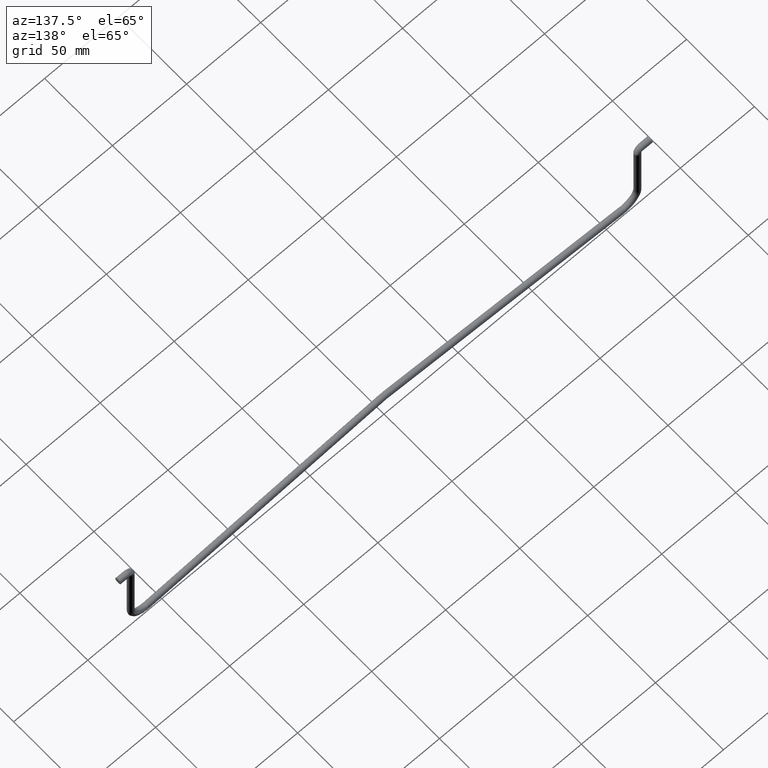
[diagram: clean part render]
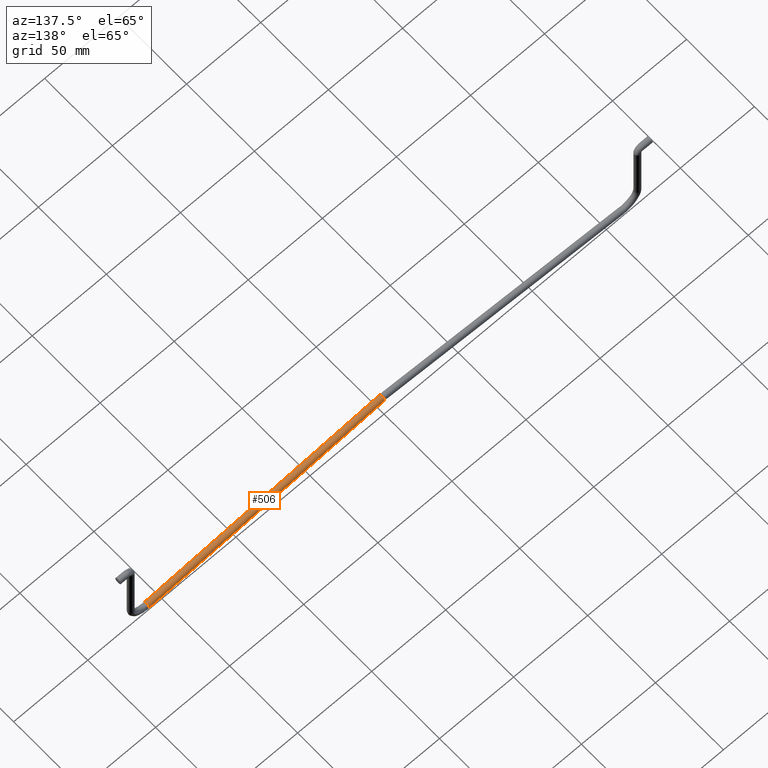
[diagram: same view with one face highlighted and labeled with its STEP entity id]
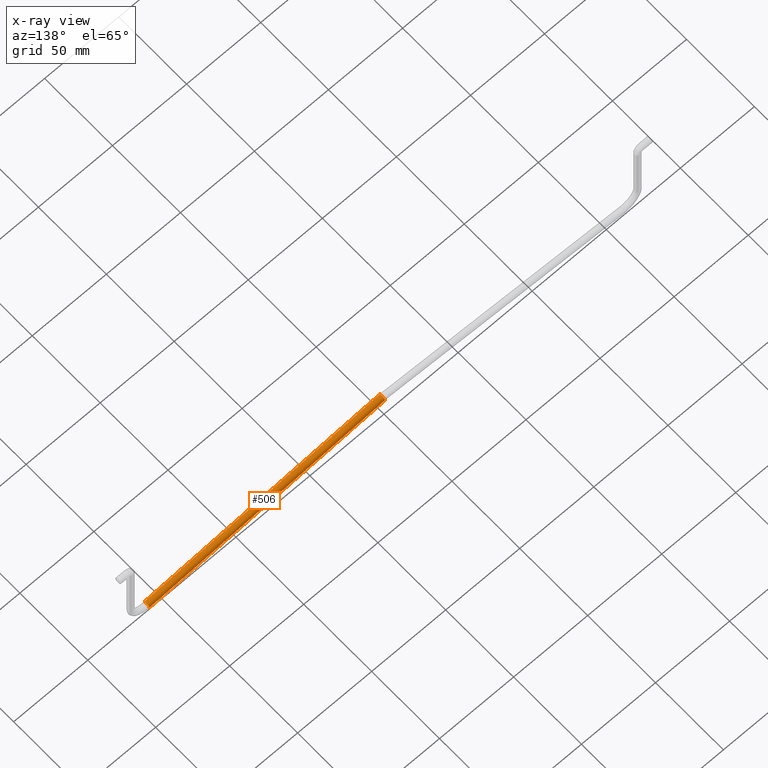
[diagram: x-ray of the same camera — body ghosted, the highlighted face saturated]
A machine part, auxiliary view. The second image highlights one B-rep face of the part: STEP entity #506.
The next image is the same camera in x-ray: the body ghosted, the highlighted face saturated — about 0% of this face is hidden behind the body in this view.
In plain terms, the highlighted face is a freeform B-spline surface patch.
Its self-contained STEP definition (entity closure, byte-faithful):
#408=CARTESIAN_POINT('',(-2.862925572434599,1.537013838790834,-44.972615344854127));
#409=CARTESIAN_POINT('',(-2.728835329992821,2.816696791465231,-43.441461744617889));
#410=CARTESIAN_POINT('',(-2.617194827453356,1.279682952674399,-42.166657893996863));
#411=CARTESIAN_POINT('',(-2.505554324913891,-0.257330886116434,-40.891854043375822));
#412=CARTESIAN_POINT('',(-2.639644567355670,-1.537013838790832,-42.423007643612081));
#413=CARTESIAN_POINT('',(164.087924521278500,1.537013838790831,-59.593277805806991));
#414=CARTESIAN_POINT('',(164.222014763720350,2.816696791465228,-58.062124205570747));
#415=CARTESIAN_POINT('',(164.333655266259800,1.279682952674396,-56.787320354949713));
#416=CARTESIAN_POINT('',(164.445295768799210,-0.257330886116437,-55.512516504328687));
#417=CARTESIAN_POINT('',(164.311205526357500,-1.537013838790835,-57.043670104564939));
#425=(BOUNDED_SURFACE()B_SPLINE_SURFACE(2,1,((#408,#413),(#409,#414),(#410,#415),(#411,#416),(#412,#417)),.UNSPECIFIED.,.F.,.F.,.U.)B_SPLINE_SURFACE_WITH_KNOTS((3,2,3),(2,2),(0.0,3.313708498984763,6.627416997969525),(0.0,167.589827011697200),.UNSPECIFIED.)GEOMETRIC_REPRESENTATION_ITEM()RATIONAL_B_SPLINE_SURFACE(((1.0,1.0),(0.707106781186548,0.707106781186548),(1.0,1.0),(0.707106781186548,0.707106781186548),(1.0,1.0)))REPRESENTATION_ITEM('')SURFACE());
#426=CARTESIAN_POINT('',(1.222457637251951,1.999961179884054,-44.033301835147732));
#427=VERTEX_POINT('',#426);
#428=CARTESIAN_POINT('',(1.109730056046620,1.537014305096715,-45.320518713547393));
#429=VERTEX_POINT('',#428);
#430=CARTESIAN_POINT('',(1.222457637251951,1.999961179884054,-44.033301835147732));
#431=CARTESIAN_POINT('',(1.199536829765304,2.001897181373108,-44.295030604597287));
#432=CARTESIAN_POINT('',(1.158767237616676,1.911055054075880,-44.760571577397272));
#433=CARTESIAN_POINT('',(1.123424542060288,1.667822052604127,-45.164143736894047));
#434=CARTESIAN_POINT('',(1.109730056046620,1.537014305096715,-45.320518713547393));
#435=B_SPLINE_CURVE_WITH_KNOTS('',3,(#430,#431,#432,#433,#434),.UNSPECIFIED.,.F.,.U.,(4,1,4),(0.000000192372256,0.788131132404644,1.401156208245944),.UNSPECIFIED.);
#436=EDGE_CURVE('',#427,#429,#435,.T.);
#437=ORIENTED_EDGE('',*,*,#436,.F.);
#438=CARTESIAN_POINT('',(1.395852024824098,7.645428E-016,-42.053340907661678));
#439=VERTEX_POINT('',#438);
#440=CARTESIAN_POINT('',(1.395852024824098,7.645428E-016,-42.053340907661678));
#441=CARTESIAN_POINT('',(1.395875130297601,0.260796208973278,-42.053077090657609));
#442=CARTESIAN_POINT('',(1.387388616991591,0.749512015261352,-42.149983168770760));
#443=CARTESIAN_POINT('',(1.352022843823558,1.393299824293846,-42.553818917021637));
#444=CARTESIAN_POINT('',(1.296294498577362,1.870515150545783,-43.190171370157238));
#445=CARTESIAN_POINT('',(1.248057855145439,1.998586520486926,-43.740977337908248));
#446=CARTESIAN_POINT('',(1.222457637251951,1.999961179884054,-44.033301835147732));
#447=B_SPLINE_CURVE_WITH_KNOTS('',3,(#440,#441,#442,#443,#444,#445,#446),.UNSPECIFIED.,.F.,.U.,(4,1,1,1,4),(0.000000601220168,0.782361164849886,1.466946497977828,2.249269395893304,3.129442855738981),.UNSPECIFIED.);
#448=EDGE_CURVE('',#439,#427,#447,.T.);
#449=ORIENTED_EDGE('',*,*,#448,.F.);
#450=CARTESIAN_POINT('',(1.333011082138430,-1.537013285860221,-42.770910909709407));
#451=VERTEX_POINT('',#450);
#452=CARTESIAN_POINT('',(1.333011082138430,-1.537013285860221,-42.770910909709407));
#453=CARTESIAN_POINT('',(1.353860326570726,-1.338781302187192,-42.532836945577458));
#454=CARTESIAN_POINT('',(1.385210316990107,-0.858012560340205,-42.174856754703789));
#455=CARTESIAN_POINT('',(1.395876493602592,-0.273972565772029,-42.053061503345852));
#456=CARTESIAN_POINT('',(1.395852024824098,7.645428E-016,-42.053340907661678));
#457=B_SPLINE_CURVE_WITH_KNOTS('',3,(#452,#453,#454,#455,#456),.UNSPECIFIED.,.F.,.U.,(4,1,4),(0.000000305310172,0.931243160794454,1.753062627253053),.UNSPECIFIED.);
#458=EDGE_CURVE('',#451,#439,#457,.T.);
#459=ORIENTED_EDGE('',*,*,#458,.F.);
#460=CARTESIAN_POINT('',(160.239233077835510,-1.537013299147724,-56.687067887136273));
#461=VERTEX_POINT('',#460);
#462=CARTESIAN_POINT('',(1.333011082138430,-1.537013285860221,-42.770910909709407));
#463=CARTESIAN_POINT('',(160.239233077835510,-1.537013299147724,-56.687067887136273));
#464=QUASI_UNIFORM_CURVE('',1,(#462,#463),.UNSPECIFIED.,.F.,.U.);
#465=EDGE_CURVE('',#451,#461,#464,.T.);
#466=ORIENTED_EDGE('',*,*,#465,.T.);
#467=CARTESIAN_POINT('',(160.302073987583810,-3.243411E-015,-55.969497866183538));
#468=VERTEX_POINT('',#467);
#469=CARTESIAN_POINT('',(160.239233077835510,-1.537013299147724,-56.687067887136273));
#470=CARTESIAN_POINT('',(160.257617176376410,-1.361929855105067,-56.477142427144607));
#471=CARTESIAN_POINT('',(160.289949505289090,-0.894276561390150,-56.107944335433842));
#472=CARTESIAN_POINT('',(160.302123705528090,-0.310499670640224,-55.968929622854688));
#473=CARTESIAN_POINT('',(160.302073987583810,-3.243411E-015,-55.969497866183538));
#474=B_SPLINE_CURVE_WITH_KNOTS('',3,(#469,#470,#471,#472,#473),.UNSPECIFIED.,.F.,.U.,(4,1,4),(0.000000305310466,0.821819781506541,1.753062648021827),.UNSPECIFIED.);
#475=EDGE_CURVE('',#461,#468,#474,.T.);
#476=ORIENTED_EDGE('',*,*,#475,.T.);
#477=CARTESIAN_POINT('',(160.145103757685890,1.989902031232371,-57.761914231302747));
#478=VERTEX_POINT('',#477);
#479=CARTESIAN_POINT('',(160.302073987583810,-3.243411E-015,-55.969497866183538));
#480=CARTESIAN_POINT('',(160.302082540538610,0.214409825140453,-55.969400201444962));
#481=CARTESIAN_POINT('',(160.295571718247600,0.673864234725893,-56.043746174136338));
#482=CARTESIAN_POINT('',(160.265328726265300,1.300866551740340,-56.389085757278039));
#483=CARTESIAN_POINT('',(160.213247292607010,1.801124458786266,-56.983794792676548));
#484=CARTESIAN_POINT('',(160.169041656927700,1.962577033017122,-57.488571430089067));
#485=CARTESIAN_POINT('',(160.145103757685890,1.989902031232371,-57.761914231302747));
#486=B_SPLINE_CURVE_WITH_KNOTS('',3,(#479,#480,#481,#482,#483,#484,#485),.UNSPECIFIED.,.F.,.U.,(4,1,1,1,4),(0.000000752210398,0.643292551562843,1.378539477832714,2.113686736388346,2.940789121861434),.UNSPECIFIED.);
#487=EDGE_CURVE('',#468,#478,#486,.T.);
#488=ORIENTED_EDGE('',*,*,#487,.T.);
#489=CARTESIAN_POINT('',(160.015951942390500,1.537013453807901,-59.236676691769887));
#490=VERTEX_POINT('',#489);
#491=CARTESIAN_POINT('',(160.145103757685890,1.989902031232371,-57.761914231302747));
#492=CARTESIAN_POINT('',(160.124981214317390,2.013325740279502,-57.991690105633623));
#493=CARTESIAN_POINT('',(160.078179149563510,1.973622653918702,-58.526114864850740));
#494=CARTESIAN_POINT('',(160.035913475109200,1.728190132330533,-59.008739365366928));
#495=CARTESIAN_POINT('',(160.015951942390500,1.537013453807901,-59.236676691769887));
#496=B_SPLINE_CURVE_WITH_KNOTS('',3,(#491,#492,#493,#494,#495),.UNSPECIFIED.,.F.,.U.,(4,1,4),(0.000000181391178,0.695542674943705,1.589809785530134),.UNSPECIFIED.);
#497=EDGE_CURVE('',#478,#490,#496,.T.);
#498=ORIENTED_EDGE('',*,*,#497,.T.);
#499=CARTESIAN_POINT('',(1.109730056046620,1.537014305096715,-45.320518713547393));
#500=CARTESIAN_POINT('',(160.015951942390500,1.537013453807901,-59.236676691769887));
#501=QUASI_UNIFORM_CURVE('',1,(#499,#500),.UNSPECIFIED.,.F.,.U.);
#502=EDGE_CURVE('',#429,#490,#501,.T.);
#503=ORIENTED_EDGE('',*,*,#502,.F.);
#504=EDGE_LOOP('',(#437,#449,#459,#466,#476,#488,#498,#503));
#505=FACE_OUTER_BOUND('',#504,.T.);
#506=ADVANCED_FACE('',(#505),#425,.T.);